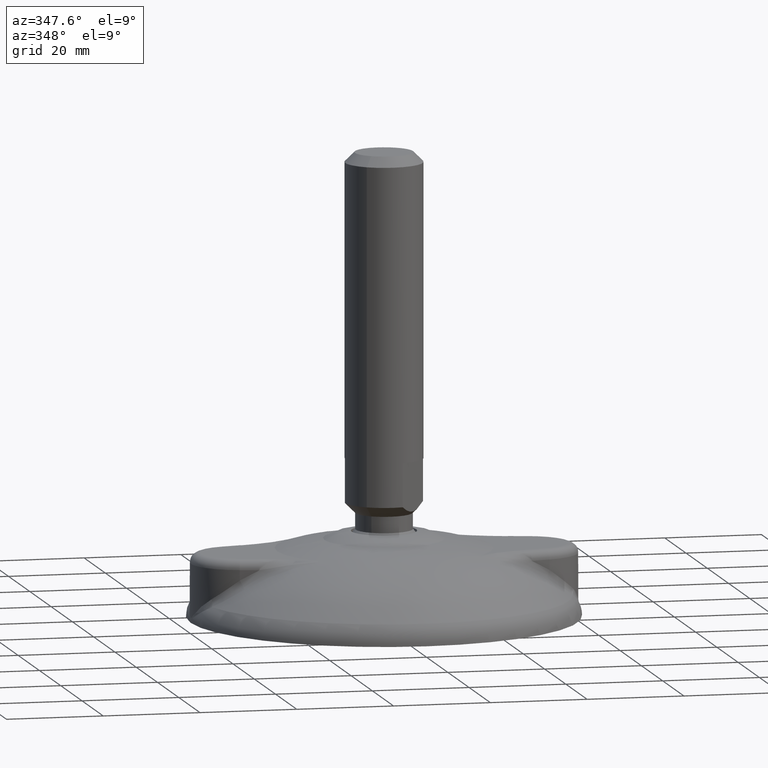
[diagram: clean part render]
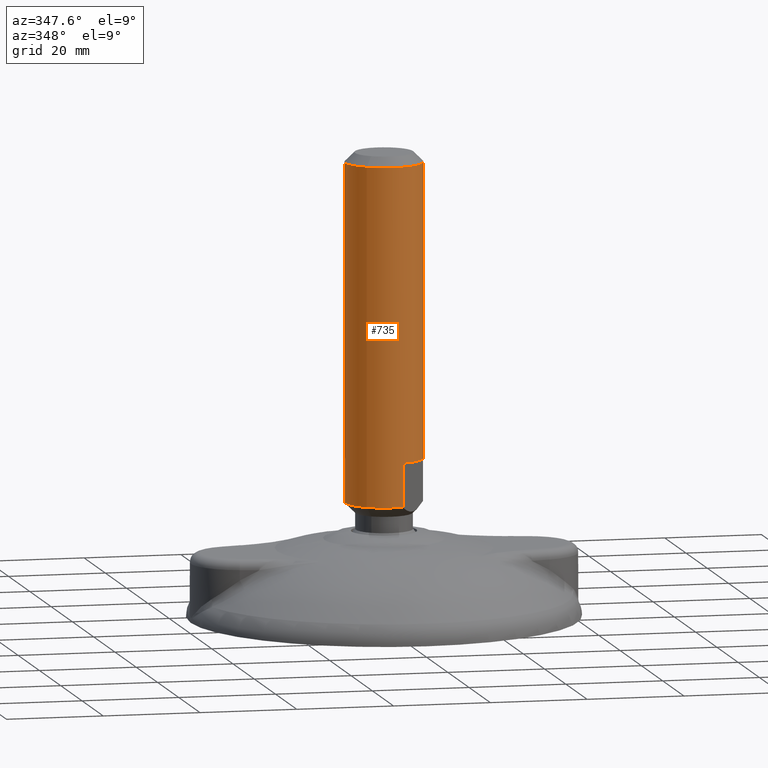
[diagram: same view with one face highlighted and labeled with its STEP entity id]
A machine part, auxiliary view. The second image highlights one B-rep face of the part: STEP entity #735.
In plain terms, the highlighted cylindrical surface (bore or boss wall) has radius 8 mm, axis along (0, 0, 1).
Its self-contained STEP definition (entity closure, byte-faithful):
#65=LINE('',#1813,#83);
#66=LINE('',#1818,#84);
#67=LINE('',#1822,#85);
#69=LINE('',#1826,#87);
#83=VECTOR('',#978,9.);
#84=VECTOR('',#979,9.);
#85=VECTOR('',#982,9.);
#87=VECTOR('',#984,9.);
#143=FACE_BOUND('',#265,.T.);
#157=CYLINDRICAL_SURFACE('',#814,8.00000000000001);
#204=FACE_OUTER_BOUND('',#264,.T.);
#264=EDGE_LOOP('',(#666));
#265=EDGE_LOOP('',(#667,#668,#669,#670,#671,#672,#673,#674));
#312=CIRCLE('',#809,8.00000000000001);
#313=CIRCLE('',#813,8.00000000000001);
#314=CIRCLE('',#815,8.00000000000001);
#315=CIRCLE('',#816,8.);
#316=CIRCLE('',#817,8.);
#374=VERTEX_POINT('',#1807);
#375=VERTEX_POINT('',#1808);
#376=VERTEX_POINT('',#1812);
#377=VERTEX_POINT('',#1814);
#378=VERTEX_POINT('',#1820);
#379=VERTEX_POINT('',#1821);
#380=VERTEX_POINT('',#1823);
#381=VERTEX_POINT('',#1825);
#382=VERTEX_POINT('',#1833);
#470=EDGE_CURVE('',#374,#375,#312,.T.);
#472=EDGE_CURVE('',#376,#374,#65,.T.);
#474=EDGE_CURVE('',#375,#377,#66,.T.);
#475=EDGE_CURVE('',#378,#379,#67,.T.);
#477=EDGE_CURVE('',#381,#380,#69,.T.);
#479=EDGE_CURVE('',#380,#378,#313,.T.);
#480=EDGE_CURVE('',#382,#382,#314,.T.);
#481=EDGE_CURVE('',#377,#381,#315,.T.);
#482=EDGE_CURVE('',#379,#376,#316,.T.);
#666=ORIENTED_EDGE('',*,*,#480,.F.);
#667=ORIENTED_EDGE('',*,*,#472,.T.);
#668=ORIENTED_EDGE('',*,*,#470,.T.);
#669=ORIENTED_EDGE('',*,*,#474,.T.);
#670=ORIENTED_EDGE('',*,*,#481,.T.);
#671=ORIENTED_EDGE('',*,*,#477,.T.);
#672=ORIENTED_EDGE('',*,*,#479,.T.);
#673=ORIENTED_EDGE('',*,*,#475,.T.);
#674=ORIENTED_EDGE('',*,*,#482,.T.);
#735=ADVANCED_FACE('',(#204,#143),#157,.T.);
#809=AXIS2_PLACEMENT_3D('',#1809,#973,#974);
#813=AXIS2_PLACEMENT_3D('',#1831,#987,#988);
#814=AXIS2_PLACEMENT_3D('',#1832,#989,#990);
#815=AXIS2_PLACEMENT_3D('',#1834,#991,#992);
#816=AXIS2_PLACEMENT_3D('',#1835,#993,#994);
#817=AXIS2_PLACEMENT_3D('',#1836,#995,#996);
#973=DIRECTION('center_axis',(0.,0.,-1.));
#974=DIRECTION('ref_axis',(-1.,0.,0.));
#978=DIRECTION('',(0.,0.,-1.));
#979=DIRECTION('',(0.,0.,1.));
#982=DIRECTION('',(0.,0.,1.));
#984=DIRECTION('',(0.,0.,-1.));
#987=DIRECTION('center_axis',(0.,0.,-1.));
#988=DIRECTION('ref_axis',(-1.,0.,0.));
#989=DIRECTION('center_axis',(0.,0.,-1.));
#990=DIRECTION('ref_axis',(-1.,0.,0.));
#991=DIRECTION('center_axis',(0.,0.,-1.));
#992=DIRECTION('ref_axis',(1.,0.,0.));
#993=DIRECTION('center_axis',(0.,0.,-1.));
#994=DIRECTION('ref_axis',(1.,0.,0.));
#995=DIRECTION('center_axis',(0.,0.,-1.));
#996=DIRECTION('ref_axis',(1.,0.,0.));
#1807=CARTESIAN_POINT('',(-4.66368952654441,6.5,-9.));
#1808=CARTESIAN_POINT('',(4.66368952654441,6.5,-9.));
#1809=CARTESIAN_POINT('Origin',(0.,0.,-9.));
#1812=CARTESIAN_POINT('',(-4.6636895265444,6.5,0.));
#1813=CARTESIAN_POINT('',(-4.66368952654441,6.5,-35.75));
#1814=CARTESIAN_POINT('',(4.6636895265444,6.5,0.));
#1818=CARTESIAN_POINT('',(4.66368952654441,6.5,-35.75));
#1820=CARTESIAN_POINT('',(-4.66368952654441,-6.5,-9.));
#1821=CARTESIAN_POINT('',(-4.6636895265444,-6.5,0.));
#1822=CARTESIAN_POINT('',(-4.66368952654441,-6.5,-35.75));
#1823=CARTESIAN_POINT('',(4.66368952654441,-6.5,-9.));
#1825=CARTESIAN_POINT('',(4.6636895265444,-6.5,0.));
#1826=CARTESIAN_POINT('',(4.66368952654441,-6.5,-35.75));
#1831=CARTESIAN_POINT('Origin',(0.,0.,-9.));
#1832=CARTESIAN_POINT('Origin',(0.,0.,-35.75));
#1833=CARTESIAN_POINT('',(-8.00000000000001,9.79717439317883E-16,-69.5));
#1834=CARTESIAN_POINT('Origin',(0.,0.,-69.5));
#1835=CARTESIAN_POINT('Origin',(0.,0.,0.));
#1836=CARTESIAN_POINT('Origin',(0.,0.,0.));